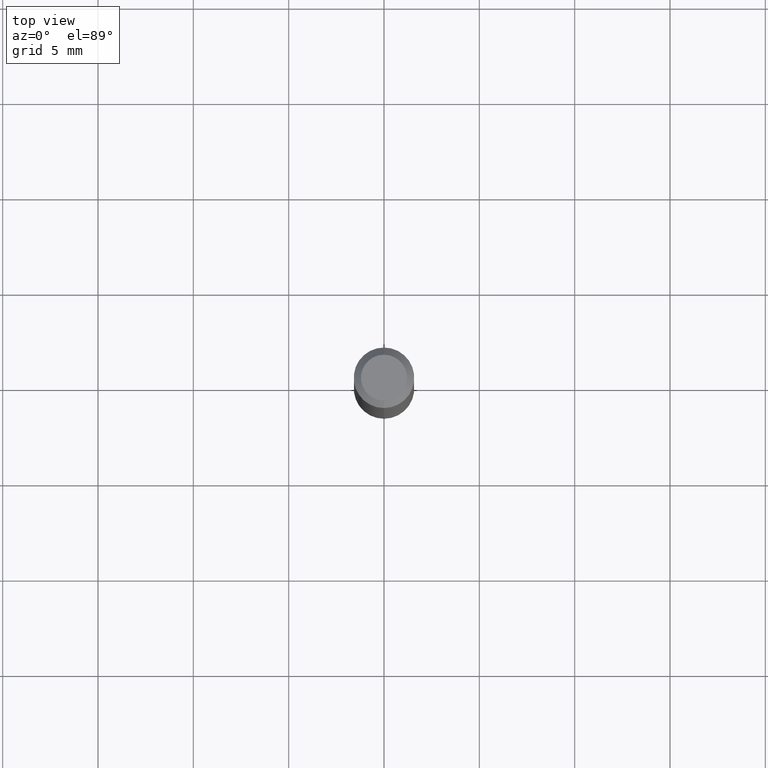
[diagram: clean part render]
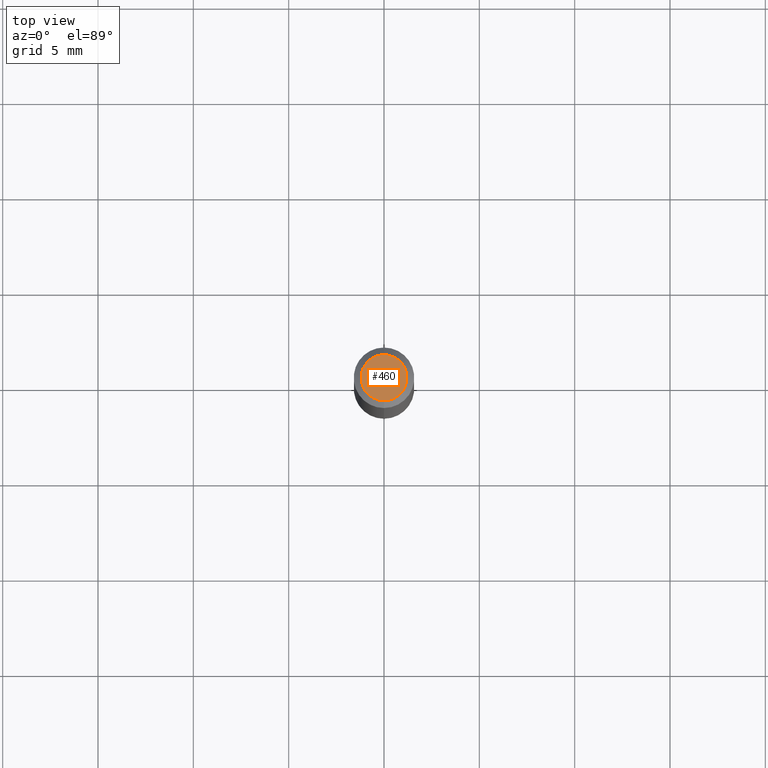
[diagram: same view with one face highlighted and labeled with its STEP entity id]
A machine part, top view. The second image highlights one B-rep face of the part: STEP entity #460.
In plain terms, the highlighted planar face has unit normal (0, -0, -1).
Its self-contained STEP definition (entity closure, byte-faithful):
#13 = DIRECTION ( 'NONE',  ( -6.982962677686266711E-15, -1.000000000000000000, 3.491493095811838152E-15 ) ) ;
#32 = ORIENTED_EDGE ( 'NONE', *, *, #207, .T. ) ;
#37 = DIRECTION ( 'NONE',  ( -2.445460596337778578E-29, 3.491493095811837758E-15, 1.000000000000000000 ) ) ;
#97 = FACE_OUTER_BOUND ( 'NONE', #360, .T. ) ;
#105 = ORIENTED_EDGE ( 'NONE', *, *, #134, .T. ) ;
#134 = EDGE_CURVE ( 'NONE', #262, #147, #450, .T. ) ;
#142 = AXIS2_PLACEMENT_3D ( 'NONE', #406, #178, #218 ) ;
#147 = VERTEX_POINT ( 'NONE', #392 ) ;
#167 = DIRECTION ( 'NONE',  ( -2.445460596337778578E-29, 3.491493095811837758E-15, 1.000000000000000000 ) ) ;
#178 = DIRECTION ( 'NONE',  ( 2.445460596337778298E-29, -3.491493095811837758E-15, -1.000000000000000000 ) ) ;
#197 = DIRECTION ( 'NONE',  ( -6.982962677686266711E-15, -1.000000000000000000, 3.491493095811838152E-15 ) ) ;
#207 = EDGE_CURVE ( 'NONE', #147, #262, #274, .T. ) ;
#218 = DIRECTION ( 'NONE',  ( 6.982962677686265922E-15, 1.000000000000000000, -3.491493095811837758E-15 ) ) ;
#235 = AXIS2_PLACEMENT_3D ( 'NONE', #511, #37, #197 ) ;
#248 = CARTESIAN_POINT ( 'NONE',  ( -3.773273898774340269E-16, -0.04749999999999999362, 1.003462464546789391E-16 ) ) ;
#254 = PLANE ( 'NONE',  #142 ) ;
#262 = VERTEX_POINT ( 'NONE', #248 ) ;
#274 = CIRCLE ( 'NONE', #368, 0.04749999999999999362 ) ;
#360 = EDGE_LOOP ( 'NONE', ( #32, #105 ) ) ;
#368 = AXIS2_PLACEMENT_3D ( 'NONE', #480, #167, #13 ) ;
#392 = CARTESIAN_POINT ( 'NONE',  ( 3.840629472727447874E-16, 0.04749999999999999362, -2.313455976474456035E-16 ) ) ;
#406 = CARTESIAN_POINT ( 'NONE',  ( 3.316907271900976096E-16, 0.04749999999999999362, -1.985957598492539435E-16 ) ) ;
#450 = CIRCLE ( 'NONE', #235, 0.04749999999999999362 ) ;
#460 = ADVANCED_FACE ( 'NONE', ( #97 ), #254, .F. ) ;
#480 = CARTESIAN_POINT ( 'NONE',  ( 1.601768757438626220E-45, -2.286916651226875284E-31, -6.549967559638333218E-17 ) ) ;
#511 = CARTESIAN_POINT ( 'NONE',  ( 1.601768757438626220E-45, -2.286916651226875284E-31, -6.549967559638333218E-17 ) ) ;